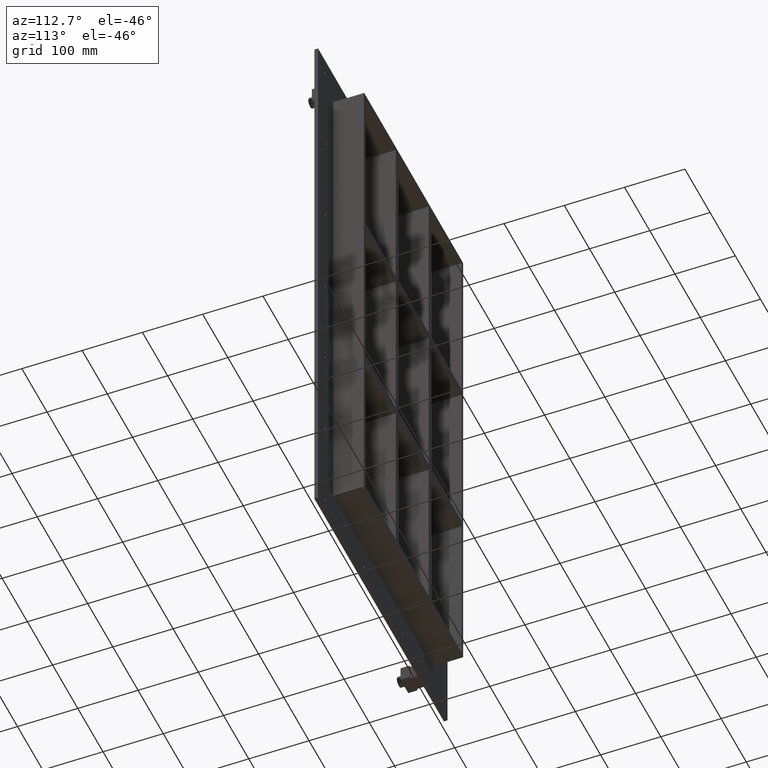
[diagram: clean part render]
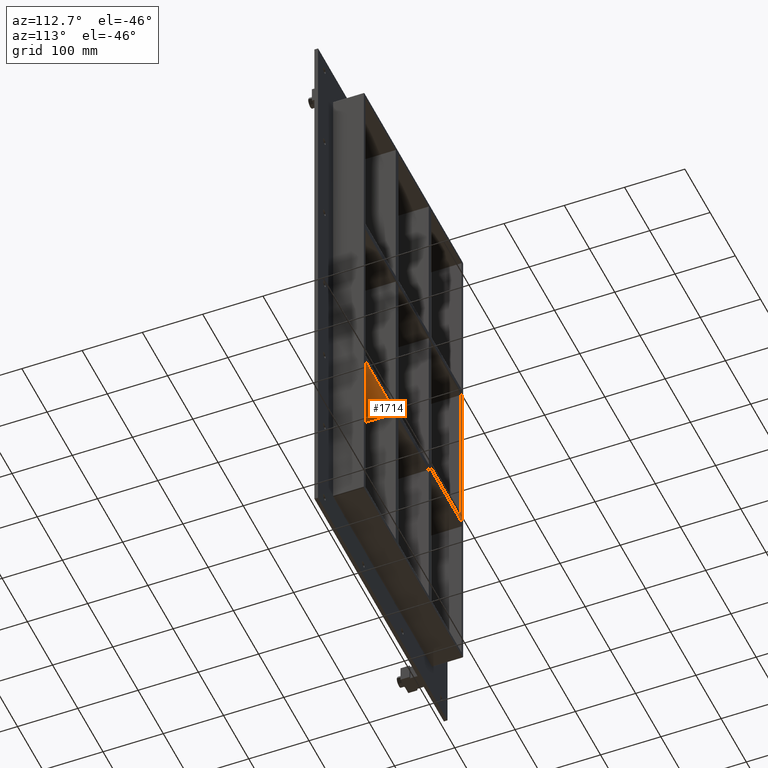
[diagram: same view with one face highlighted and labeled with its STEP entity id]
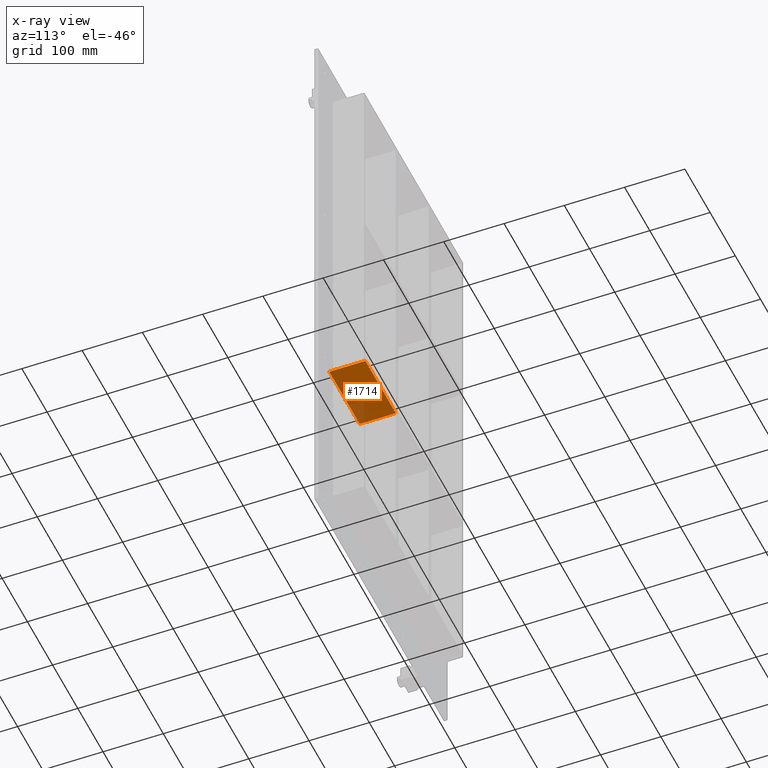
[diagram: x-ray of the same camera — body ghosted, the highlighted face saturated]
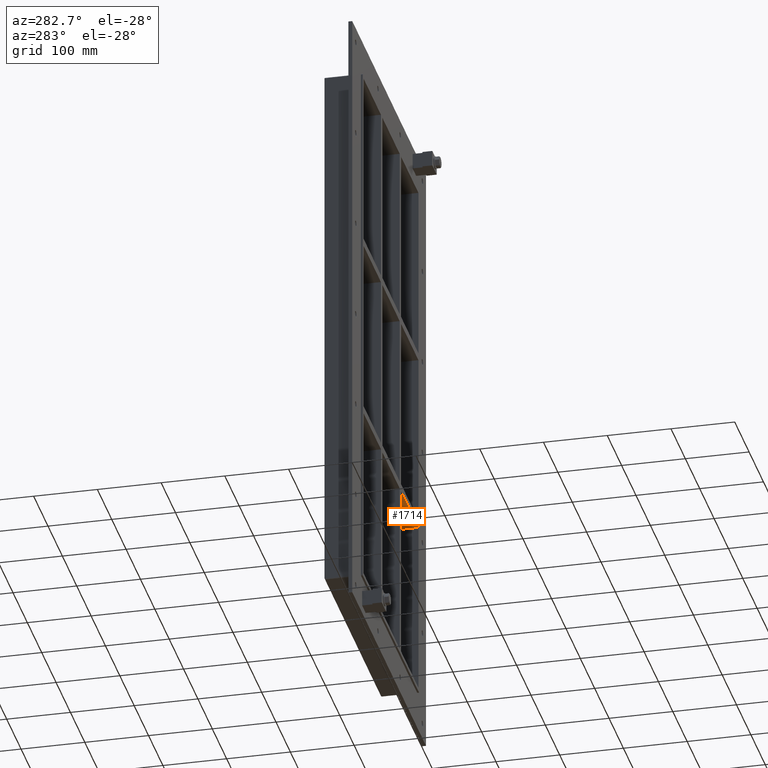
[diagram: same view with one face highlighted and labeled with its STEP entity id]
A machine part, auxiliary view. The second image highlights one B-rep face of the part: STEP entity #1714.
The next image is the same camera in x-ray: the body ghosted, the highlighted face saturated — about 11% of this face is hidden behind the body in this view.
A second angle (auxiliary view) of the same face is appended — the face is thin or edge-on in the first view.
In plain terms, the highlighted planar face has unit normal (0, 0, -1).
Its self-contained STEP definition (entity closure, byte-faithful):
#1289=CARTESIAN_POINT('',(190.7500000000073,57.0,-151.00000000001097));
#1290=VERTEX_POINT('',#1289);
#1297=CARTESIAN_POINT('',(70.250000000003638,57.0,-151.00000000001117));
#1298=VERTEX_POINT('',#1297);
#1299=CARTESIAN_POINT('',(190.75000000000728,57.0,-151.00000000001097));
#1300=DIRECTION('',(-1.0,0.0,0.0));
#1301=VECTOR('',#1300,120.50000000000364);
#1302=LINE('',#1299,#1301);
#1303=EDGE_CURVE('',#1290,#1298,#1302,.T.);
#1398=CARTESIAN_POINT('',(70.250000000003638,-3.0,-151.00000000001117));
#1399=VERTEX_POINT('',#1398);
#1400=CARTESIAN_POINT('',(70.250000000003638,-3.0,-151.00000000001117));
#1401=DIRECTION('',(0.0,1.0,0.0));
#1402=VECTOR('',#1401,60.0);
#1403=LINE('',#1400,#1402);
#1404=EDGE_CURVE('',#1399,#1298,#1403,.T.);
#1646=CARTESIAN_POINT('',(190.75000000000728,-3.0,-151.00000000001097));
#1647=VERTEX_POINT('',#1646);
#1648=CARTESIAN_POINT('',(190.75000000000728,-3.0,-151.00000000001097));
#1649=DIRECTION('',(-1.0,0.0,0.0));
#1650=VECTOR('',#1649,120.50000000000364);
#1651=LINE('',#1648,#1650);
#1652=EDGE_CURVE('',#1647,#1399,#1651,.T.);
#1698=CARTESIAN_POINT('',(190.75000000000728,-3.0,-151.00000000001097));
#1699=DIRECTION('',(0.0,0.0,-1.0));
#1700=DIRECTION('',(-1.0,0.0,0.0));
#1701=AXIS2_PLACEMENT_3D('',#1698,#1699,#1700);
#1702=PLANE('',#1701);
#1703=ORIENTED_EDGE('',*,*,#1404,.T.);
#1704=ORIENTED_EDGE('',*,*,#1303,.F.);
#1705=CARTESIAN_POINT('',(190.75000000000003,-3.0,-151.00000000001097));
#1706=DIRECTION('',(0.0,1.0,0.0));
#1707=VECTOR('',#1706,60.000000000000007);
#1708=LINE('',#1705,#1707);
#1709=EDGE_CURVE('',#1647,#1290,#1708,.T.);
#1710=ORIENTED_EDGE('',*,*,#1709,.F.);
#1711=ORIENTED_EDGE('',*,*,#1652,.T.);
#1712=EDGE_LOOP('',(#1703,#1704,#1710,#1711));
#1713=FACE_OUTER_BOUND('',#1712,.T.);
#1714=ADVANCED_FACE('',(#1713),#1702,.T.);